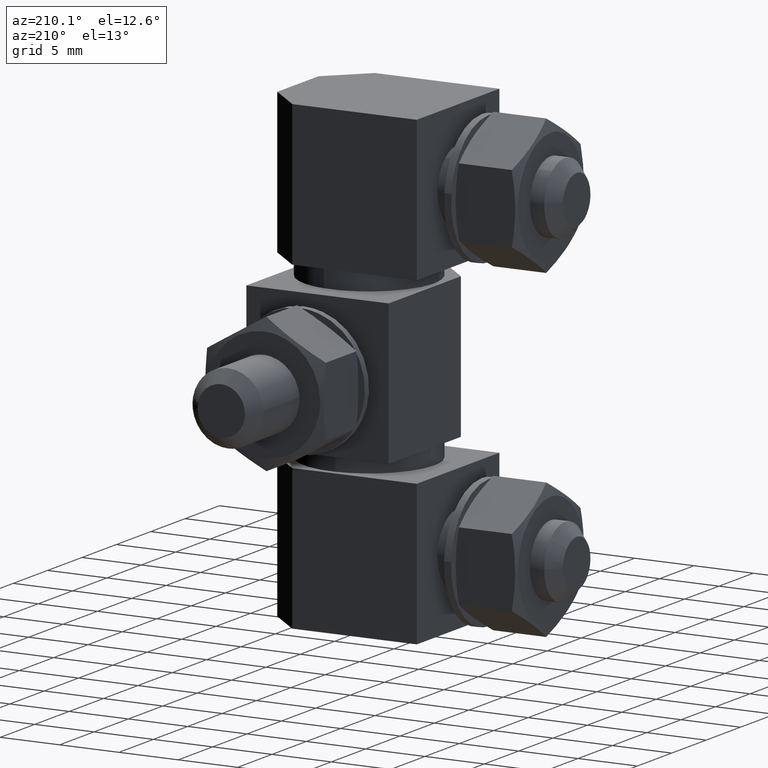
[diagram: clean part render]
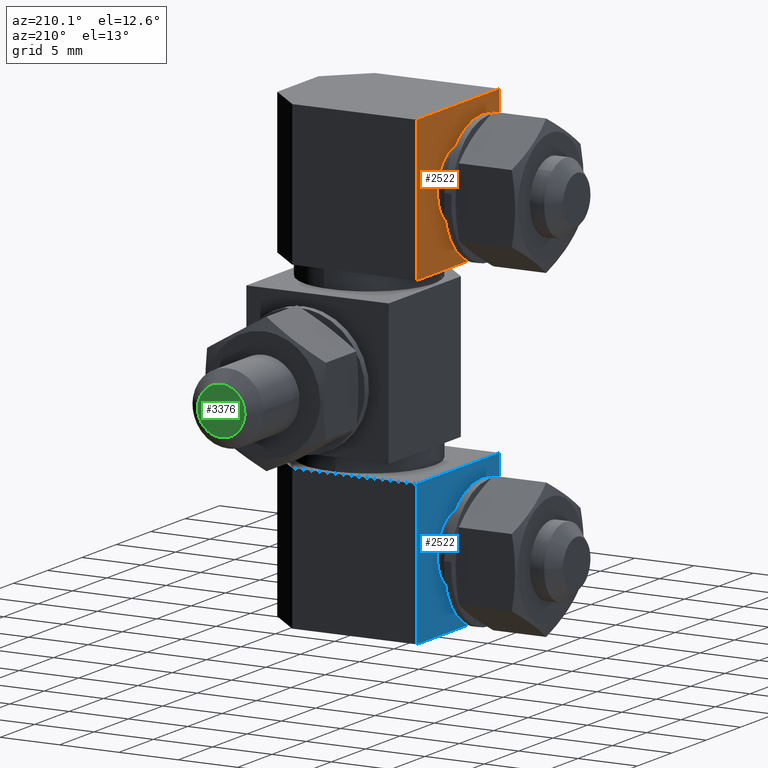
[diagram: same view with three faces highlighted in distinct colors, each labeled with its STEP entity id]
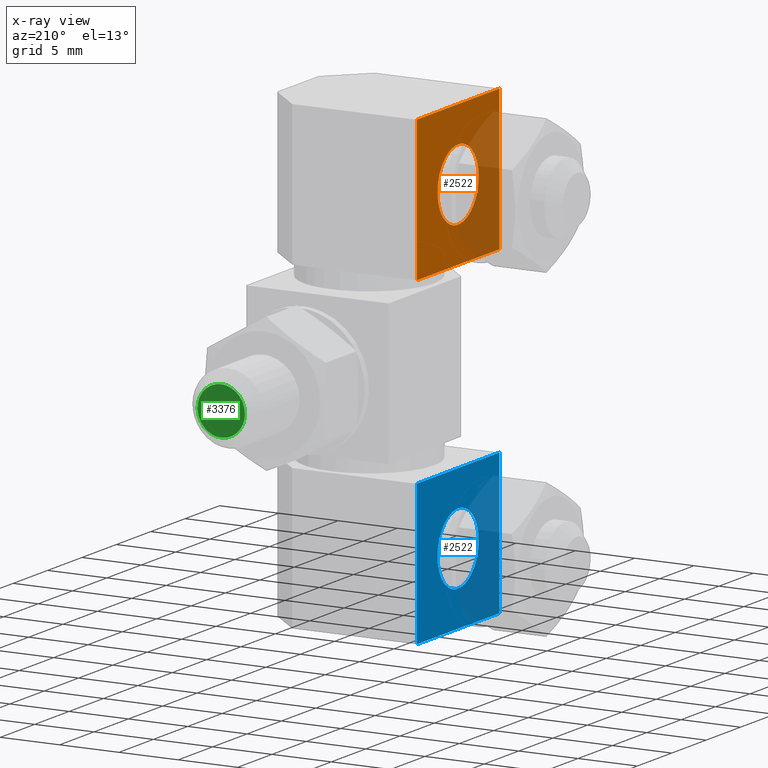
[diagram: x-ray of the same camera — body ghosted, the three highlighted faces saturated]
A machine part, auxiliary view with three faces highlighted in distinct colors.
The next image is the same camera in x-ray (body ghosted, the three faces saturated) — at least one of them is partly hidden behind the body in this view.
Their STEP definitions:

[orange] entity #2522 — the highlighted face is a freeform B-spline surface patch.
#2210=CARTESIAN_POINT('',(-7.500000356230890,-2.139751435323910,8.102728771128980));
#2211=VERTEX_POINT('',#2210);
#2217=CARTESIAN_POINT('',(-7.500000356230890,3.0,6.000001067637810));
#2218=VERTEX_POINT('',#2217);
#2219=CARTESIAN_POINT('',(-7.500000356230892,-2.139751435323910,8.102728771128980));
#2220=CARTESIAN_POINT('',(-7.500000356230890,-1.258004552670930,9.000001067637809));
#2221=CARTESIAN_POINT('',(-7.500000356230890,0.0,9.000001067637809));
#2222=CARTESIAN_POINT('',(-7.500000356230891,3.0,9.000001067637809));
#2223=CARTESIAN_POINT('',(-7.500000356230890,3.0,6.000001067637810));
#2231=(BOUNDED_CURVE()B_SPLINE_CURVE(2,(#2219,#2220,#2221,#2222,#2223),.UNSPECIFIED.,.F.,.U.)B_SPLINE_CURVE_WITH_KNOTS((3,2,3),(0.623683229799089,0.750000000000000,1.0),.UNSPECIFIED.)CURVE()GEOMETRIC_REPRESENTATION_ITEM()RATIONAL_B_SPLINE_CURVE((0.853569641562749,0.852010698342944,1.0,0.707106781186548,1.0))REPRESENTATION_ITEM(''));
#2232=EDGE_CURVE('',#2211,#2218,#2231,.T.);
#2234=CARTESIAN_POINT('',(-7.500000356230890,-1.841597396801906,3.631769865223880));
#2235=VERTEX_POINT('',#2234);
#2236=CARTESIAN_POINT('',(-7.500000356230890,3.0,6.000001067637810));
#2237=CARTESIAN_POINT('',(-7.500000356230891,3.0,3.000001067637810));
#2238=CARTESIAN_POINT('',(-7.500000356230890,0.0,3.000001067637810));
#2239=CARTESIAN_POINT('',(-7.500000356230890,-1.029164352668404,3.000001067637810));
#2240=CARTESIAN_POINT('',(-7.500000356230890,-1.841597396801906,3.631769865223879));
#2248=(BOUNDED_CURVE()B_SPLINE_CURVE(2,(#2236,#2237,#2238,#2239,#2240),.UNSPECIFIED.,.F.,.U.)B_SPLINE_CURVE_WITH_KNOTS((3,2,3),(0.0,0.250000000000000,0.356197706361851),.UNSPECIFIED.)CURVE()GEOMETRIC_REPRESENTATION_ITEM()RATIONAL_B_SPLINE_CURVE((1.0,0.707106781186548,1.0,0.875581647812287,0.856866844677822))REPRESENTATION_ITEM(''));
#2249=EDGE_CURVE('',#2218,#2235,#2248,.T.);
#2279=CARTESIAN_POINT('',(-7.500000356230890,-3.0,6.000001067637810));
#2280=VERTEX_POINT('',#2279);
#2281=CARTESIAN_POINT('',(-7.500000356230890,-1.841597396801906,3.631769865223879));
#2282=CARTESIAN_POINT('',(-7.500000356230890,-3.0,4.532573476087939));
#2283=CARTESIAN_POINT('',(-7.500000356230890,-3.0,6.000001067637810));
#2291=(BOUNDED_CURVE()B_SPLINE_CURVE(2,(#2281,#2282,#2283),.UNSPECIFIED.,.F.,.U.)B_SPLINE_CURVE_WITH_KNOTS((3,3),(0.356197706361851,0.500000000000000),.UNSPECIFIED.)CURVE()GEOMETRIC_REPRESENTATION_ITEM()RATIONAL_B_SPLINE_CURVE((0.856866844677822,0.831525133374261,1.0))REPRESENTATION_ITEM(''));
#2292=EDGE_CURVE('',#2235,#2280,#2291,.T.);
#2294=CARTESIAN_POINT('',(-7.500000356230890,-3.0,6.000001067637810));
#2295=CARTESIAN_POINT('',(-7.500000356230891,-3.0,7.227333325586928));
#2296=CARTESIAN_POINT('',(-7.500000356230890,-2.139751435323910,8.102728771128980));
#2304=(BOUNDED_CURVE()B_SPLINE_CURVE(2,(#2294,#2295,#2296),.UNSPECIFIED.,.F.,.U.)B_SPLINE_CURVE_WITH_KNOTS((3,3),(0.500000000000000,0.623683229799090),.UNSPECIFIED.)CURVE()GEOMETRIC_REPRESENTATION_ITEM()RATIONAL_B_SPLINE_CURVE((1.0,0.855096082843603,0.853569641562749))REPRESENTATION_ITEM(''));
#2305=EDGE_CURVE('',#2280,#2211,#2304,.T.);
#2342=CARTESIAN_POINT('',(-7.500000356230840,6.000000284984700,0.0));
#2343=VERTEX_POINT('',#2342);
#2370=CARTESIAN_POINT('',(-7.500000356230901,-6.000000284984710,0.0));
#2371=VERTEX_POINT('',#2370);
#2377=CARTESIAN_POINT('',(-7.500000356230840,6.000000284984700,0.0));
#2378=CARTESIAN_POINT('',(-7.500000356230901,-6.000000284984710,0.0));
#2379=QUASI_UNIFORM_CURVE('',1,(#2377,#2378),.UNSPECIFIED.,.F.,.U.);
#2380=EDGE_CURVE('',#2343,#2371,#2379,.T.);
#2464=CARTESIAN_POINT('',(-7.500000356230901,-6.000000284984710,12.000000569969419));
#2465=VERTEX_POINT('',#2464);
#2471=CARTESIAN_POINT('',(-7.500000356230901,-6.000000284984710,12.000000569969419));
#2472=CARTESIAN_POINT('',(-7.500000356230901,-6.000000284984710,0.0));
#2473=QUASI_UNIFORM_CURVE('',1,(#2471,#2472),.UNSPECIFIED.,.F.,.U.);
#2474=EDGE_CURVE('',#2465,#2371,#2473,.T.);
#2485=CARTESIAN_POINT('',(-7.500000356230840,6.000000284984700,12.000000569969419));
#2486=VERTEX_POINT('',#2485);
#2487=CARTESIAN_POINT('',(-7.500000356230840,6.000000284984700,12.000000569969419));
#2488=CARTESIAN_POINT('',(-7.500000356230840,6.000000284984700,0.0));
#2489=QUASI_UNIFORM_CURVE('',1,(#2487,#2488),.UNSPECIFIED.,.F.,.U.);
#2490=EDGE_CURVE('',#2486,#2343,#2489,.T.);
#2501=CARTESIAN_POINT('',(-7.500000356230840,-6.599400515491190,-0.599400005211642));
#2502=CARTESIAN_POINT('',(-7.500000356230840,6.599400622779547,-0.599400005211642));
#2503=CARTESIAN_POINT('',(-7.500000356230840,-6.599400515491190,12.599400897046159));
#2504=CARTESIAN_POINT('',(-7.500000356230840,6.599400622779547,12.599400897046159));
#2505=B_SPLINE_SURFACE_WITH_KNOTS('',1,1,((#2501,#2503),(#2502,#2504)),.UNSPECIFIED.,.F.,.F.,.U.,(2,2),(2,2),(0.0,13.198801138270740),(0.0,13.198800902257799),.UNSPECIFIED.);
#2506=ORIENTED_EDGE('',*,*,#2380,.T.);
#2507=ORIENTED_EDGE('',*,*,#2474,.F.);
#2508=CARTESIAN_POINT('',(-7.500000356230840,6.000000284984700,12.000000569969419));
#2509=CARTESIAN_POINT('',(-7.500000356230901,-6.000000284984710,12.000000569969419));
#2510=QUASI_UNIFORM_CURVE('',1,(#2508,#2509),.UNSPECIFIED.,.F.,.U.);
#2511=EDGE_CURVE('',#2486,#2465,#2510,.T.);
#2512=ORIENTED_EDGE('',*,*,#2511,.F.);
#2513=ORIENTED_EDGE('',*,*,#2490,.T.);
#2514=EDGE_LOOP('',(#2506,#2507,#2512,#2513));
#2515=FACE_OUTER_BOUND('',#2514,.T.);
#2516=ORIENTED_EDGE('',*,*,#2305,.F.);
#2517=ORIENTED_EDGE('',*,*,#2292,.F.);
#2518=ORIENTED_EDGE('',*,*,#2249,.F.);
#2519=ORIENTED_EDGE('',*,*,#2232,.F.);
#2520=EDGE_LOOP('',(#2516,#2517,#2518,#2519));
#2521=FACE_BOUND('',#2520,.T.);
#2522=ADVANCED_FACE('',(#2515,#2521),#2505,.F.);

[blue] entity #2522 — the highlighted face is a freeform B-spline surface patch.
#2210=CARTESIAN_POINT('',(-7.500000356230890,-2.139751435323910,8.102728771128980));
#2211=VERTEX_POINT('',#2210);
#2217=CARTESIAN_POINT('',(-7.500000356230890,3.0,6.000001067637810));
#2218=VERTEX_POINT('',#2217);
#2219=CARTESIAN_POINT('',(-7.500000356230892,-2.139751435323910,8.102728771128980));
#2220=CARTESIAN_POINT('',(-7.500000356230890,-1.258004552670930,9.000001067637809));
#2221=CARTESIAN_POINT('',(-7.500000356230890,0.0,9.000001067637809));
#2222=CARTESIAN_POINT('',(-7.500000356230891,3.0,9.000001067637809));
#2223=CARTESIAN_POINT('',(-7.500000356230890,3.0,6.000001067637810));
#2231=(BOUNDED_CURVE()B_SPLINE_CURVE(2,(#2219,#2220,#2221,#2222,#2223),.UNSPECIFIED.,.F.,.U.)B_SPLINE_CURVE_WITH_KNOTS((3,2,3),(0.623683229799089,0.750000000000000,1.0),.UNSPECIFIED.)CURVE()GEOMETRIC_REPRESENTATION_ITEM()RATIONAL_B_SPLINE_CURVE((0.853569641562749,0.852010698342944,1.0,0.707106781186548,1.0))REPRESENTATION_ITEM(''));
#2232=EDGE_CURVE('',#2211,#2218,#2231,.T.);
#2234=CARTESIAN_POINT('',(-7.500000356230890,-1.841597396801906,3.631769865223880));
#2235=VERTEX_POINT('',#2234);
#2236=CARTESIAN_POINT('',(-7.500000356230890,3.0,6.000001067637810));
#2237=CARTESIAN_POINT('',(-7.500000356230891,3.0,3.000001067637810));
#2238=CARTESIAN_POINT('',(-7.500000356230890,0.0,3.000001067637810));
#2239=CARTESIAN_POINT('',(-7.500000356230890,-1.029164352668404,3.000001067637810));
#2240=CARTESIAN_POINT('',(-7.500000356230890,-1.841597396801906,3.631769865223879));
#2248=(BOUNDED_CURVE()B_SPLINE_CURVE(2,(#2236,#2237,#2238,#2239,#2240),.UNSPECIFIED.,.F.,.U.)B_SPLINE_CURVE_WITH_KNOTS((3,2,3),(0.0,0.250000000000000,0.356197706361851),.UNSPECIFIED.)CURVE()GEOMETRIC_REPRESENTATION_ITEM()RATIONAL_B_SPLINE_CURVE((1.0,0.707106781186548,1.0,0.875581647812287,0.856866844677822))REPRESENTATION_ITEM(''));
#2249=EDGE_CURVE('',#2218,#2235,#2248,.T.);
#2279=CARTESIAN_POINT('',(-7.500000356230890,-3.0,6.000001067637810));
#2280=VERTEX_POINT('',#2279);
#2281=CARTESIAN_POINT('',(-7.500000356230890,-1.841597396801906,3.631769865223879));
#2282=CARTESIAN_POINT('',(-7.500000356230890,-3.0,4.532573476087939));
#2283=CARTESIAN_POINT('',(-7.500000356230890,-3.0,6.000001067637810));
#2291=(BOUNDED_CURVE()B_SPLINE_CURVE(2,(#2281,#2282,#2283),.UNSPECIFIED.,.F.,.U.)B_SPLINE_CURVE_WITH_KNOTS((3,3),(0.356197706361851,0.500000000000000),.UNSPECIFIED.)CURVE()GEOMETRIC_REPRESENTATION_ITEM()RATIONAL_B_SPLINE_CURVE((0.856866844677822,0.831525133374261,1.0))REPRESENTATION_ITEM(''));
#2292=EDGE_CURVE('',#2235,#2280,#2291,.T.);
#2294=CARTESIAN_POINT('',(-7.500000356230890,-3.0,6.000001067637810));
#2295=CARTESIAN_POINT('',(-7.500000356230891,-3.0,7.227333325586928));
#2296=CARTESIAN_POINT('',(-7.500000356230890,-2.139751435323910,8.102728771128980));
#2304=(BOUNDED_CURVE()B_SPLINE_CURVE(2,(#2294,#2295,#2296),.UNSPECIFIED.,.F.,.U.)B_SPLINE_CURVE_WITH_KNOTS((3,3),(0.500000000000000,0.623683229799090),.UNSPECIFIED.)CURVE()GEOMETRIC_REPRESENTATION_ITEM()RATIONAL_B_SPLINE_CURVE((1.0,0.855096082843603,0.853569641562749))REPRESENTATION_ITEM(''));
#2305=EDGE_CURVE('',#2280,#2211,#2304,.T.);
#2342=CARTESIAN_POINT('',(-7.500000356230840,6.000000284984700,0.0));
#2343=VERTEX_POINT('',#2342);
#2370=CARTESIAN_POINT('',(-7.500000356230901,-6.000000284984710,0.0));
#2371=VERTEX_POINT('',#2370);
#2377=CARTESIAN_POINT('',(-7.500000356230840,6.000000284984700,0.0));
#2378=CARTESIAN_POINT('',(-7.500000356230901,-6.000000284984710,0.0));
#2379=QUASI_UNIFORM_CURVE('',1,(#2377,#2378),.UNSPECIFIED.,.F.,.U.);
#2380=EDGE_CURVE('',#2343,#2371,#2379,.T.);
#2464=CARTESIAN_POINT('',(-7.500000356230901,-6.000000284984710,12.000000569969419));
#2465=VERTEX_POINT('',#2464);
#2471=CARTESIAN_POINT('',(-7.500000356230901,-6.000000284984710,12.000000569969419));
#2472=CARTESIAN_POINT('',(-7.500000356230901,-6.000000284984710,0.0));
#2473=QUASI_UNIFORM_CURVE('',1,(#2471,#2472),.UNSPECIFIED.,.F.,.U.);
#2474=EDGE_CURVE('',#2465,#2371,#2473,.T.);
#2485=CARTESIAN_POINT('',(-7.500000356230840,6.000000284984700,12.000000569969419));
#2486=VERTEX_POINT('',#2485);
#2487=CARTESIAN_POINT('',(-7.500000356230840,6.000000284984700,12.000000569969419));
#2488=CARTESIAN_POINT('',(-7.500000356230840,6.000000284984700,0.0));
#2489=QUASI_UNIFORM_CURVE('',1,(#2487,#2488),.UNSPECIFIED.,.F.,.U.);
#2490=EDGE_CURVE('',#2486,#2343,#2489,.T.);
#2501=CARTESIAN_POINT('',(-7.500000356230840,-6.599400515491190,-0.599400005211642));
#2502=CARTESIAN_POINT('',(-7.500000356230840,6.599400622779547,-0.599400005211642));
#2503=CARTESIAN_POINT('',(-7.500000356230840,-6.599400515491190,12.599400897046159));
#2504=CARTESIAN_POINT('',(-7.500000356230840,6.599400622779547,12.599400897046159));
#2505=B_SPLINE_SURFACE_WITH_KNOTS('',1,1,((#2501,#2503),(#2502,#2504)),.UNSPECIFIED.,.F.,.F.,.U.,(2,2),(2,2),(0.0,13.198801138270740),(0.0,13.198800902257799),.UNSPECIFIED.);
#2506=ORIENTED_EDGE('',*,*,#2380,.T.);
#2507=ORIENTED_EDGE('',*,*,#2474,.F.);
#2508=CARTESIAN_POINT('',(-7.500000356230840,6.000000284984700,12.000000569969419));
#2509=CARTESIAN_POINT('',(-7.500000356230901,-6.000000284984710,12.000000569969419));
#2510=QUASI_UNIFORM_CURVE('',1,(#2508,#2509),.UNSPECIFIED.,.F.,.U.);
#2511=EDGE_CURVE('',#2486,#2465,#2510,.T.);
#2512=ORIENTED_EDGE('',*,*,#2511,.F.);
#2513=ORIENTED_EDGE('',*,*,#2490,.T.);
#2514=EDGE_LOOP('',(#2506,#2507,#2512,#2513));
#2515=FACE_OUTER_BOUND('',#2514,.T.);
#2516=ORIENTED_EDGE('',*,*,#2305,.F.);
#2517=ORIENTED_EDGE('',*,*,#2292,.F.);
#2518=ORIENTED_EDGE('',*,*,#2249,.F.);
#2519=ORIENTED_EDGE('',*,*,#2232,.F.);
#2520=EDGE_LOOP('',(#2516,#2517,#2518,#2519));
#2521=FACE_BOUND('',#2520,.T.);
#2522=ADVANCED_FACE('',(#2515,#2521),#2505,.F.);

[green] entity #3376 — the highlighted face is a freeform B-spline surface patch.
#2870=CARTESIAN_POINT('',(1.966179784774624,21.500001021192791,19.966248570366169));
#2871=VERTEX_POINT('',#2870);
#2877=CARTESIAN_POINT('',(0.0,21.500001021195200,21.600001312419799));
#2878=VERTEX_POINT('',#2877);
#2879=CARTESIAN_POINT('',(0.0,21.500001021195200,21.600001312419799));
#2880=CARTESIAN_POINT('',(1.661854887015678,21.500001021195196,21.600001312419799));
#2881=CARTESIAN_POINT('',(1.966179784774624,21.500001021192791,19.966248570366172));
#2889=(BOUNDED_CURVE()B_SPLINE_CURVE(2,(#2879,#2880,#2881),.UNSPECIFIED.,.F.,.U.)B_SPLINE_CURVE_WITH_KNOTS((3,3),(0.500000000000000,0.718554736283512),.UNSPECIFIED.)CURVE()GEOMETRIC_REPRESENTATION_ITEM()RATIONAL_B_SPLINE_CURVE((1.0,0.743947199211988,0.935586817231004))REPRESENTATION_ITEM(''));
#2890=EDGE_CURVE('',#2878,#2871,#2889,.T.);
#2892=CARTESIAN_POINT('',(-1.999923846157574,21.500001021163971,19.582548241193759));
#2893=VERTEX_POINT('',#2892);
#2894=CARTESIAN_POINT('',(-1.999923846157574,21.500001021163968,19.582548241193756));
#2895=CARTESIAN_POINT('',(-2.000000000000000,21.500001021195196,19.591274610549355));
#2896=CARTESIAN_POINT('',(-2.0,21.500001021195200,19.600001312419799));
#2897=CARTESIAN_POINT('',(-2.000000000000000,21.500001021195196,21.600001312419803));
#2898=CARTESIAN_POINT('',(0.0,21.500001021195200,21.600001312419799));
#2906=(BOUNDED_CURVE()B_SPLINE_CURVE(2,(#2894,#2895,#2896,#2897,#2898),.UNSPECIFIED.,.F.,.U.)B_SPLINE_CURVE_WITH_KNOTS((3,2,3),(0.248460105624671,0.250000000000000,0.500000000000000),.UNSPECIFIED.)CURVE()GEOMETRIC_REPRESENTATION_ITEM()RATIONAL_B_SPLINE_CURVE((0.996414028007043,0.998195901519108,1.0,0.707106781186548,1.0))REPRESENTATION_ITEM(''));
#2907=EDGE_CURVE('',#2893,#2878,#2906,.T.);
#3017=CARTESIAN_POINT('',(0.0,21.500001021195200,17.600001312419799));
#3018=VERTEX_POINT('',#3017);
#3019=CARTESIAN_POINT('',(0.0,21.500001021195200,17.600001312419799));
#3020=CARTESIAN_POINT('',(-1.982622420735857,21.500001021195210,17.600001312419803));
#3021=CARTESIAN_POINT('',(-1.999923846157574,21.500001021163971,19.582548241193752));
#3029=(BOUNDED_CURVE()B_SPLINE_CURVE(2,(#3019,#3020,#3021),.UNSPECIFIED.,.F.,.U.)B_SPLINE_CURVE_WITH_KNOTS((3,3),(0.0,0.248460105624671),.UNSPECIFIED.)CURVE()GEOMETRIC_REPRESENTATION_ITEM()RATIONAL_B_SPLINE_CURVE((1.0,0.708910879667439,0.996414028007042))REPRESENTATION_ITEM(''));
#3030=EDGE_CURVE('',#3018,#2893,#3029,.T.);
#3032=CARTESIAN_POINT('',(1.966179784774624,21.500001021192794,19.966248570366165));
#3033=CARTESIAN_POINT('',(2.0,21.500001021195196,19.784686464299156));
#3034=CARTESIAN_POINT('',(2.0,21.500001021195200,19.600001312419799));
#3035=CARTESIAN_POINT('',(2.000000000000000,21.500001021195196,17.600001312419803));
#3036=CARTESIAN_POINT('',(0.0,21.500001021195200,17.600001312419799));
#3044=(BOUNDED_CURVE()B_SPLINE_CURVE(2,(#3032,#3033,#3034,#3035,#3036),.UNSPECIFIED.,.F.,.U.)B_SPLINE_CURVE_WITH_KNOTS((3,2,3),(0.718554736283512,0.750000000000000,1.0),.UNSPECIFIED.)CURVE()GEOMETRIC_REPRESENTATION_ITEM()RATIONAL_B_SPLINE_CURVE((0.935586817231005,0.963159581974560,1.0,0.707106781186548,1.0))REPRESENTATION_ITEM(''));
#3045=EDGE_CURVE('',#2871,#3018,#3044,.T.);
#3365=CARTESIAN_POINT('',(-2.199716268390977,21.500001021195200,17.400200401058228));
#3366=CARTESIAN_POINT('',(2.199717591614092,21.500001021195200,17.400200401058228));
#3367=CARTESIAN_POINT('',(-2.199716268390977,21.500001021195200,21.799800256828100));
#3368=CARTESIAN_POINT('',(2.199717591614092,21.500001021195200,21.799800256828100));
#3369=B_SPLINE_SURFACE_WITH_KNOTS('',1,1,((#3365,#3367),(#3366,#3368)),.UNSPECIFIED.,.F.,.F.,.U.,(2,2),(2,2),(0.0,4.399433860005068),(0.0,4.399599855769868),.UNSPECIFIED.);
#3370=ORIENTED_EDGE('',*,*,#3030,.T.);
#3371=ORIENTED_EDGE('',*,*,#2907,.T.);
#3372=ORIENTED_EDGE('',*,*,#2890,.T.);
#3373=ORIENTED_EDGE('',*,*,#3045,.T.);
#3374=EDGE_LOOP('',(#3370,#3371,#3372,#3373));
#3375=FACE_OUTER_BOUND('',#3374,.T.);
#3376=ADVANCED_FACE('',(#3375),#3369,.F.);